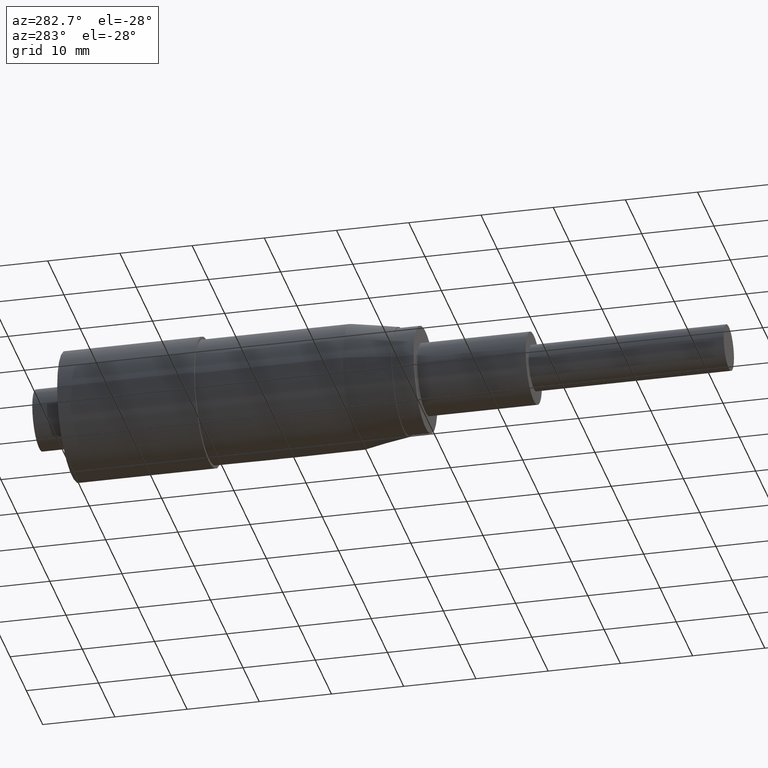
[diagram: clean part render]
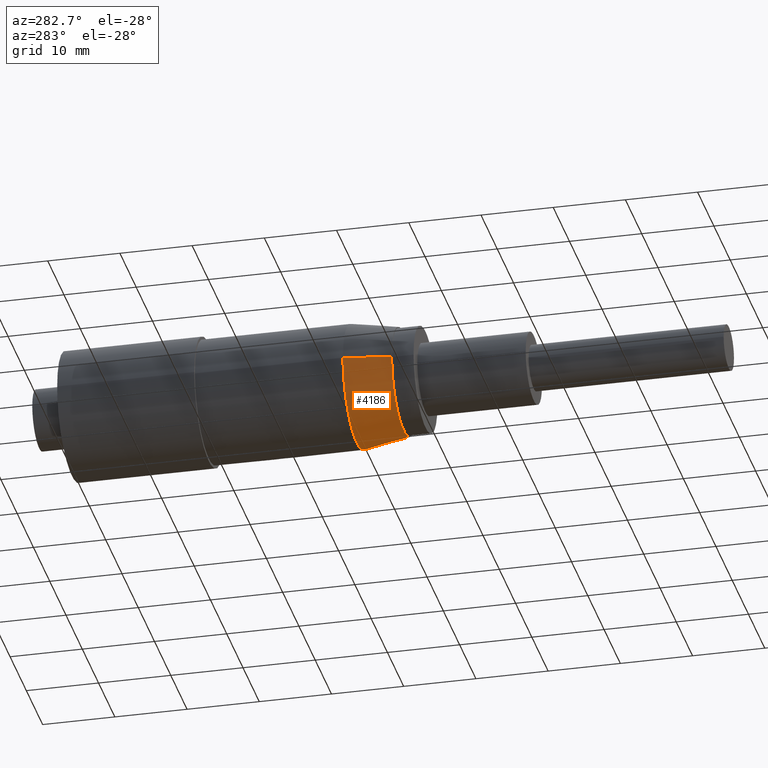
[diagram: same view with one face highlighted and labeled with its STEP entity id]
A machine part, auxiliary view. The second image highlights one B-rep face of the part: STEP entity #4186.
In plain terms, the highlighted conical surface has half-angle 9.605 deg.
Its self-contained STEP definition (entity closure, byte-faithful):
#290 = VERTEX_POINT ( 'NONE', #2257 ) ;
#836 = LINE ( 'NONE', #6207, #5265 ) ;
#903 = DIRECTION ( 'NONE',  ( -0.1668583036929087400, 0.9859808854580929300, 0.0000000000000000000 ) ) ;
#1303 = DIRECTION ( 'NONE',  ( -1.058937486943297600E-016, 1.000000000000000000, -0.0000000000000000000 ) ) ;
#1322 = CARTESIAN_POINT ( 'NONE',  ( 26.15296289245996400, 15.02618278390013100, 28.87709965591408000 ) ) ;
#1418 = CARTESIAN_POINT ( 'NONE',  ( 42.25296289245995500, 21.52618278390012900, 28.87709965591408000 ) ) ;
#1720 = VECTOR ( 'NONE', #3136, 1000.000000000000100 ) ;
#1834 = ORIENTED_EDGE ( 'NONE', *, *, #8077, .F. ) ;
#1920 = AXIS2_PLACEMENT_3D ( 'NONE', #3590, #9777, #4479 ) ;
#2257 = CARTESIAN_POINT ( 'NONE',  ( 41.15296289245995400, 15.02618278390013100, 28.87709965591408000 ) ) ;
#2509 = ORIENTED_EDGE ( 'NONE', *, *, #3755, .T. ) ;
#2922 = CARTESIAN_POINT ( 'NONE',  ( 33.65296289245996100, 21.52618278390012900, 28.87709965591408000 ) ) ;
#3136 = DIRECTION ( 'NONE',  ( 0.1668583036929085200, 0.9859808854580930400, 2.043424875286775500E-017 ) ) ;
#3590 = CARTESIAN_POINT ( 'NONE',  ( 33.65296289245996100, 15.02618278390013100, 28.87709965591408000 ) ) ;
#3755 = EDGE_CURVE ( 'NONE', #290, #11393, #7911, .T. ) ;
#3801 = DIRECTION ( 'NONE',  ( -1.000000000000000000, 0.0000000000000000000, 0.0000000000000000000 ) ) ;
#4186 = ADVANCED_FACE ( 'NONE', ( #10665 ), #7200, .T. ) ;
#4298 = ORIENTED_EDGE ( 'NONE', *, *, #4496, .T. ) ;
#4479 = DIRECTION ( 'NONE',  ( -1.000000000000000000, 0.0000000000000000000, 0.0000000000000000000 ) ) ;
#4496 = EDGE_CURVE ( 'NONE', #11393, #9566, #836, .T. ) ;
#4855 = DIRECTION ( 'NONE',  ( -1.000000000000000000, 0.0000000000000000000, 0.0000000000000000000 ) ) ;
#5265 = VECTOR ( 'NONE', #903, 1000.000000000000200 ) ;
#5391 = VERTEX_POINT ( 'NONE', #9524 ) ;
#5436 = CIRCLE ( 'NONE', #6040, 8.599999999999999600 ) ;
#6040 = AXIS2_PLACEMENT_3D ( 'NONE', #2922, #9100, #3801 ) ;
#6207 = CARTESIAN_POINT ( 'NONE',  ( 25.05296289245996300, 21.52618278390012900, 28.87709965591408000 ) ) ;
#7200 = CONICAL_SURFACE ( 'NONE', #10821, 8.599999999999999600, 0.1676424378312163000 ) ;
#7320 = EDGE_LOOP ( 'NONE', ( #8943, #2509, #4298, #1834 ) ) ;
#7911 = CIRCLE ( 'NONE', #1920, 7.499999999999996400 ) ;
#8077 = EDGE_CURVE ( 'NONE', #5391, #9566, #5436, .T. ) ;
#8486 = LINE ( 'NONE', #1418, #1720 ) ;
#8943 = ORIENTED_EDGE ( 'NONE', *, *, #10289, .F. ) ;
#9100 = DIRECTION ( 'NONE',  ( -1.058937486943297600E-016, 1.000000000000000000, -0.0000000000000000000 ) ) ;
#9524 = CARTESIAN_POINT ( 'NONE',  ( 42.25296289245995500, 21.52618278390012900, 28.87709965591408000 ) ) ;
#9566 = VERTEX_POINT ( 'NONE', #11104 ) ;
#9777 = DIRECTION ( 'NONE',  ( -1.058937486943297600E-016, 1.000000000000000000, -0.0000000000000000000 ) ) ;
#10289 = EDGE_CURVE ( 'NONE', #290, #5391, #8486, .T. ) ;
#10665 = FACE_OUTER_BOUND ( 'NONE', #7320, .T. ) ;
#10821 = AXIS2_PLACEMENT_3D ( 'NONE', #11017, #1303, #4855 ) ;
#11017 = CARTESIAN_POINT ( 'NONE',  ( 33.65296289245996100, 21.52618278390012900, 28.87709965591408000 ) ) ;
#11104 = CARTESIAN_POINT ( 'NONE',  ( 25.05296289245996300, 21.52618278390012900, 28.87709965591408000 ) ) ;
#11393 = VERTEX_POINT ( 'NONE', #1322 ) ;